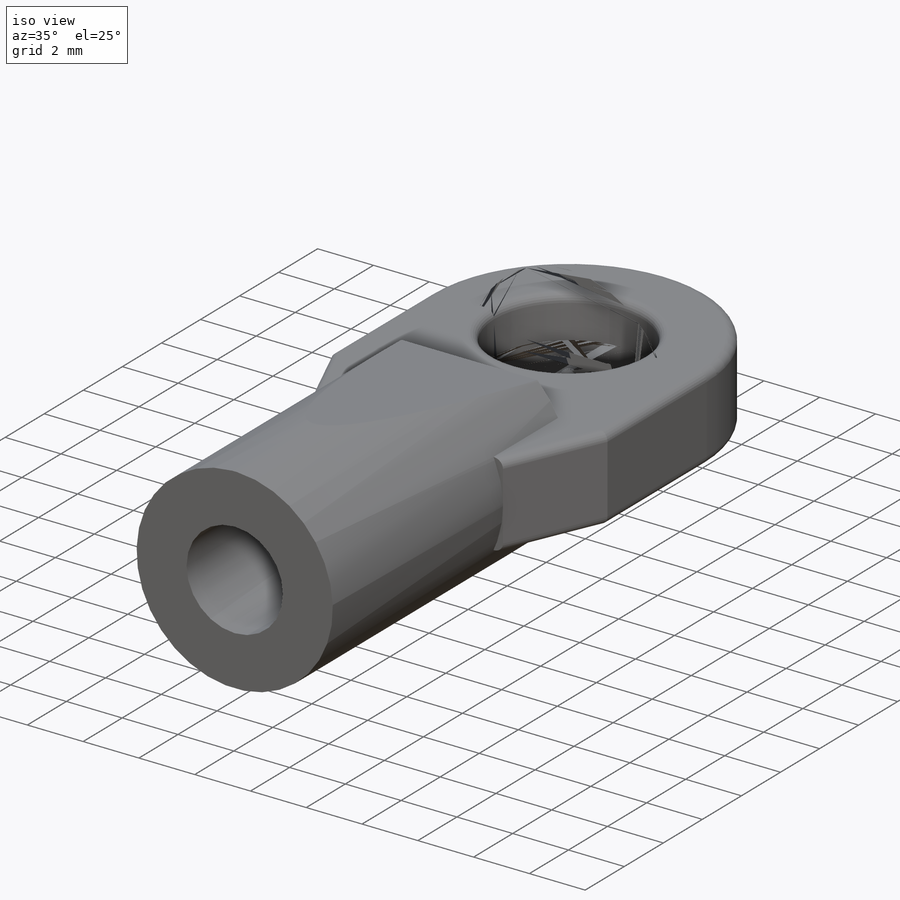
[diagram: iso view]
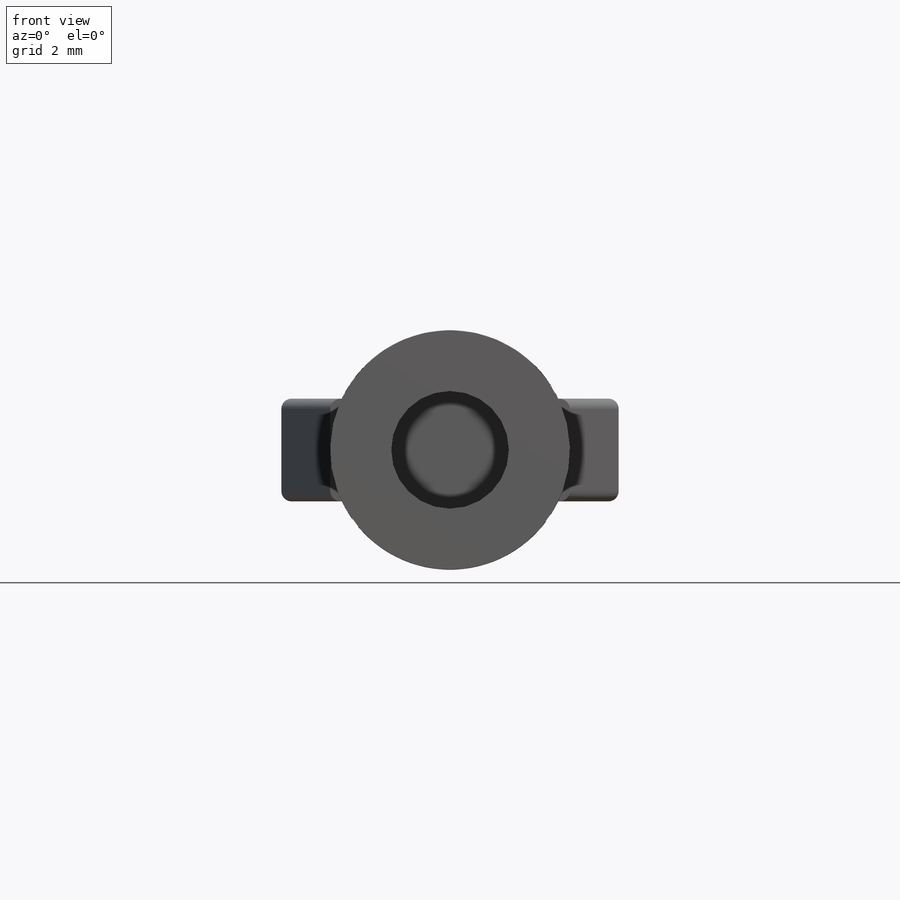
[diagram: front view]
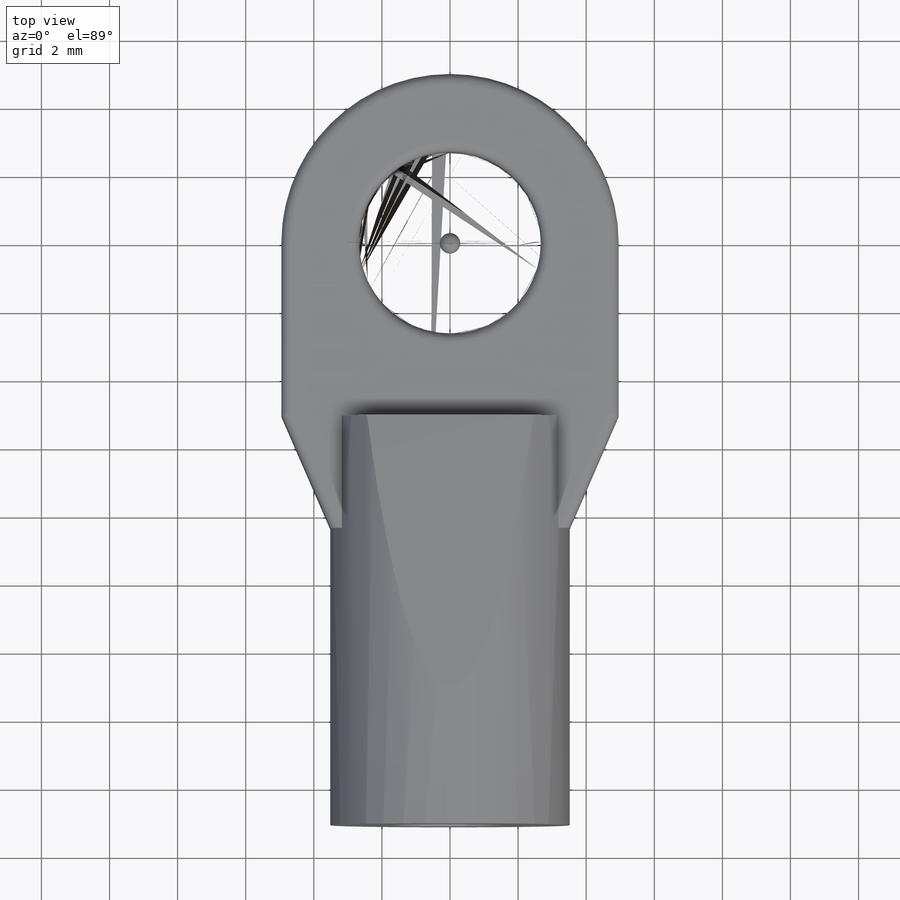
[diagram: top view]
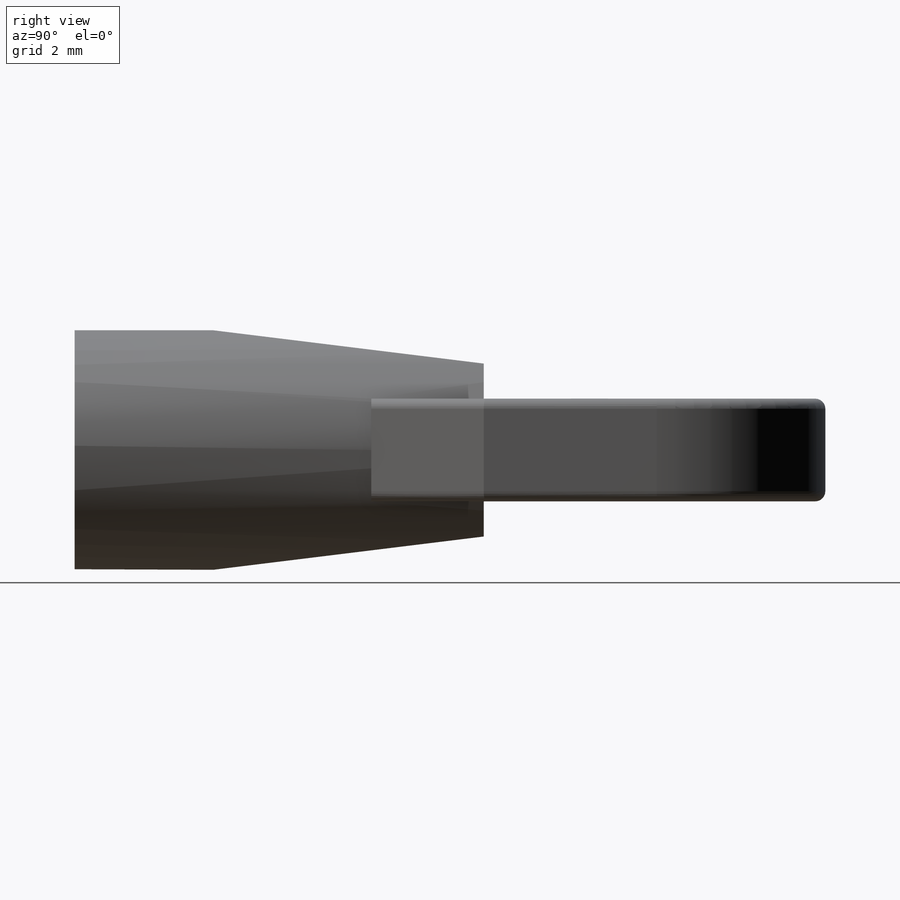
[diagram: right view]
SOLIDWORKS PART (.sldprt)
format: sldprt  version: not decoded by parser v0  size: 333,824 bytes
history: native  units: mm
features: sketch x4, fillet x4, material x1, revolve x1, cut_extrude x1, extrude x1 (+13 scaffold rows collapsed)
feature tree (25):
  scaffold x13  (default folders/planes/origin — collapsed)
  material  "ABS"
  sketch  "Sketch1"  dims[c1.D1=5.334mm c1.D7=4.953mm c2.D1=5.334mm c2.D2=3.5179mm c2.D3=1.7272mm c2.D4=7.0358mm c2.D5=12.0142mm c3.D5=~156.509493deg c3.D6=1.4351mm c3.D8=9.906mm c3.D9=3.302mm c4.D9=~46.981014deg c4.D10=0.5842mm c4.D11=17.0942mm c4.D12=1.7907mm c4.D13=4.953mm c4.D14=5.6642mm c4.D1=2.286mm c4.D2=4.953mm c4.D3=5.08mm c4.D5=~3.600377mm c4.D6=12.0142mm c5.D6=~156.509493deg c5.D7=12.0142mm c5.D8=11.43mm c5.D9=1.7907mm c5.D10=7.0358mm c6.D10=90.0deg c7.D10=5.08mm c7.D11=1.4351mm c7.D12=17.0942mm c7.D13=~6.567399mm c7.D14=12.0142mm c8.D14=90.0deg c9.D14=3.4544mm c9.D15=5.6642mm c9.D16=3.5179mm c9.D7=17.0942mm c9.D6=1.4351mm c9.D10=12.0142mm c9.D11=1.7272mm c9.D12=0.5842mm c10.D14=5.08mm c10.D15=7.0358mm c11.D15=~66.509493deg c11.D16=3.302mm c11.D4=3.5179mm c12.D4=270.0deg c13.D4=1.7272mm c13.D7=1.7907mm c13.D8=11.43mm c13.D9=12.0142mm c13.D10=~6.567399mm c13.D11=1.7272mm c14.D11=90.0deg c15.D11=1.7272mm c16.D11=90.0deg c17.D11=1.7272mm]
  revolve  "Revolve1"  Angle=360deg
  sketch  "Sketch2"  dims[c1.D1=3.4544mm c1.D2=5.08mm c1.D3=7.0358mm c1.D4=4.064mm c1.D5=7.9502mm c1.D6=0.9779mm c2.D6=~187.01234deg c2.D7=1.7907mm c2.D8=7.9502mm c3.D8=~7.01234deg c4.D8=0.5842mm c4.D9=11.43mm c4.D10=3.0226mm c4.D11=17.0942mm]
  cut_extrude  "Cut-Extrude1"  [1 undecoded]
  sketch  "Sketch7"  dims[c1.D4=5.334mm c1.D5=5.334mm c2.D4=5.334mm c2.D6=5.334mm c2.D7=5.334mm c2.D1=2.286mm c2.D2=4.953mm c2.D3=~6.567399mm c3.D1=5.08mm c3.D2=~3.600377mm c3.D3=5.08mm c4.D3=~203.490507deg c4.D5=4.953mm c4.D6=4.953mm c4.D7=2.286mm c4.D8=8.382mm c4.D9=5.08mm c5.D9=~203.490507deg]
  extrude  "Boss-Extrude2"  Depth=3.02mm
  fillet  "Fillet1"  Radius=0.3mm
  fillet  "Fillet2"  Radius=0.3mm
  fillet  "Fillet3"  Radius=0.3mm
  fillet  "Fillet4"  Radius=0.3mm
  sketch  "Sketch8"  dims[D1=180.0deg]
decode coverage: 10 of 11 modeling features carry decoded parameters
note: ~ marks probable driven/reference dimensions
note: 1 parameter value undecoded
note: suppression state not decoded; provenance and decode notes live in map.json
